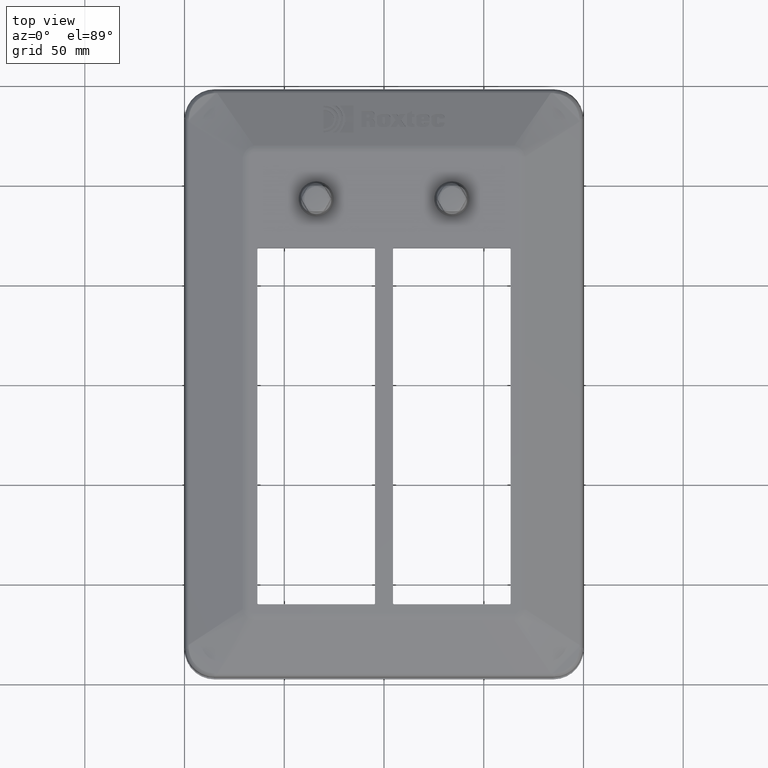
[diagram: clean part render]
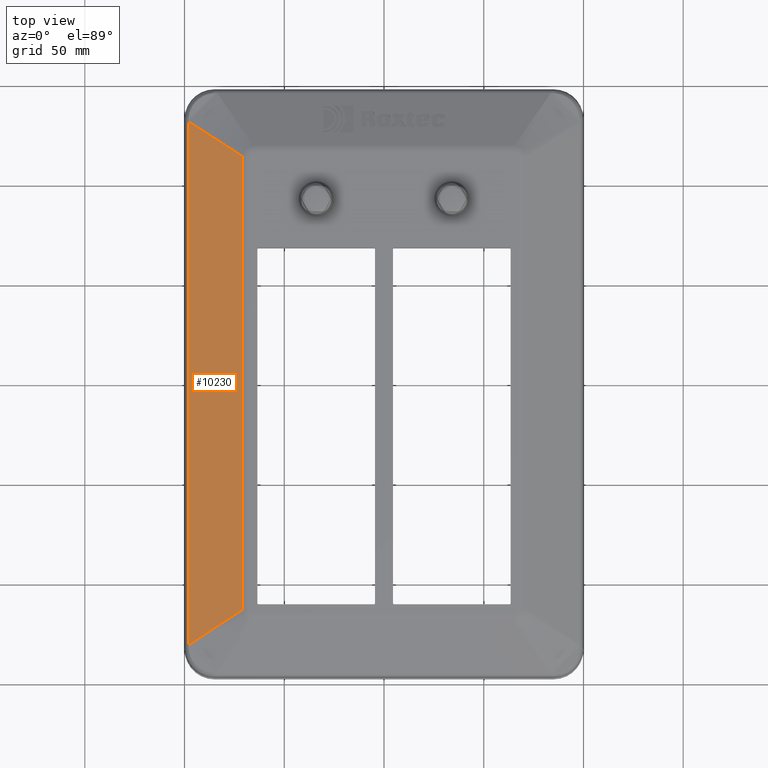
[diagram: same view with one face highlighted and labeled with its STEP entity id]
A machine part, top view. The second image highlights one B-rep face of the part: STEP entity #10230.
In plain terms, the highlighted planar face has unit normal (0.4149, 0, -0.9099).
Its self-contained STEP definition (entity closure, byte-faithful):
#911=PLANE('',#11146);
#1411=FACE_OUTER_BOUND('',#2059,.T.);
#2059=EDGE_LOOP('',(#8561,#8562,#8563,#8564));
#2726=LINE('',#18042,#3366);
#2727=LINE('',#18047,#3367);
#2728=LINE('',#18049,#3368);
#2729=LINE('',#18050,#3369);
#3366=VECTOR('',#13424,10.);
#3367=VECTOR('',#13431,10.);
#3368=VECTOR('',#13432,10.);
#3369=VECTOR('',#13433,10.);
#4667=VERTEX_POINT('',#18040);
#4668=VERTEX_POINT('',#18041);
#4669=VERTEX_POINT('',#18046);
#4670=VERTEX_POINT('',#18048);
#6005=EDGE_CURVE('',#4667,#4668,#2726,.T.);
#6008=EDGE_CURVE('',#4669,#4667,#2727,.T.);
#6009=EDGE_CURVE('',#4670,#4669,#2728,.T.);
#6010=EDGE_CURVE('',#4670,#4668,#2729,.T.);
#8561=ORIENTED_EDGE('',*,*,#6008,.F.);
#8562=ORIENTED_EDGE('',*,*,#6009,.F.);
#8563=ORIENTED_EDGE('',*,*,#6010,.T.);
#8564=ORIENTED_EDGE('',*,*,#6005,.F.);
#10230=ADVANCED_FACE('',(#1411),#911,.F.);
#11146=AXIS2_PLACEMENT_3D('',#18045,#13429,#13430);
#13424=DIRECTION('',(0.,1.,0.));
#13429=DIRECTION('center_axis',(0.414919098398359,0.,-0.909858308630686));
#13430=DIRECTION('ref_axis',(-0.909858308630686,0.,-0.414919098398359));
#13431=DIRECTION('',(-0.782692255466614,-0.50989723483167,-0.356928064382169));
#13432=DIRECTION('',(0.,-1.,0.));
#13433=DIRECTION('',(-0.782692255466613,0.509897234831671,-0.356928064382169));
#18040=CARTESIAN_POINT('',(-98.0219710076899,-131.211381763967,-9.8979672347771));
#18041=CARTESIAN_POINT('',(-98.0219710076899,131.211381763967,-9.8979672347772));
#18042=CARTESIAN_POINT('',(-98.0219710076899,122.5,-9.8979672347771));
#18045=CARTESIAN_POINT('Origin',(-69.3000000000001,112.5,3.2));
#18046=CARTESIAN_POINT('',(-70.8813428143074,-113.530190758506,2.47886646904549));
#18047=CARTESIAN_POINT('',(-69.3,-112.5,3.2));
#18048=CARTESIAN_POINT('',(-70.8813428143074,113.530190758506,2.47886646904549));
#18049=CARTESIAN_POINT('',(-70.8813428143074,-6.21724893790088E-14,2.47886646904549));
#18050=CARTESIAN_POINT('',(-69.3000000000001,112.5,3.2));